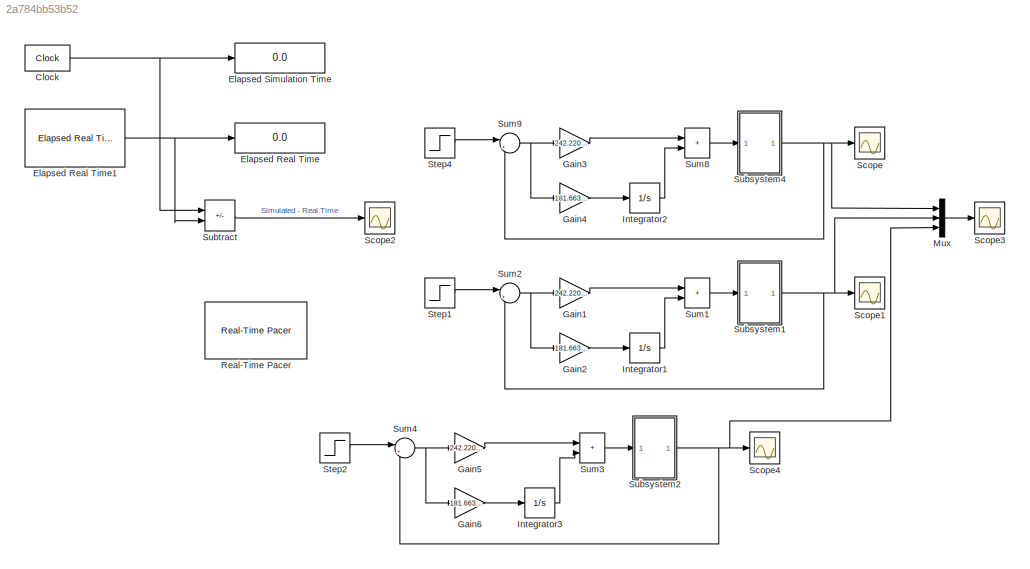
MODEL slx_2a784bb53b52
KIND model
CONFIG AbsTol = auto
CONFIG EnableMultiTasking = off
CONFIG FixedStep = auto
CONFIG MaxStep = auto
CONFIG MinStep = auto
CONFIG RelTol = 1e-3
CONFIG SampleTimeConstraint = Unconstrained
CONFIG SolverName = VariableStepAuto
CONFIG StartTime = 0.0
CONFIG StopTime = 2500
BLOCK [Clock] Clock
  Decimation = 1000
  DisplayTime = on
BLOCK [Display] Elapsed Real Time
  Decimation = 2
  Ports = [1]
BLOCK [Reference] Elapsed Real Time1  REF=realtime_pacer_lib/Elapsed Real Time
  Ports = [0, 1]
  SourceBlock = realtime_pacer_lib/Elapsed Real Time
  SourceType = RealTime_Elapsed
BLOCK [Display] Elapsed Simulation Time
  Decimation = 2
  Ports = [1]
BLOCK [Gain] Gain1
  Gain = 242.220445259
BLOCK [Gain] Gain2
  Gain = 181.6639660621
BLOCK [Gain] Gain3
  Gain = 242.220445259
BLOCK [Gain] Gain4
  Gain = 181.6639660621
BLOCK [Gain] Gain5
  Gain = 242.220445259
BLOCK [Gain] Gain6
  Gain = 181.6639660621
BLOCK [Integrator] Integrator1
  Ports = [1, 1]
BLOCK [Integrator] Integrator2
  Ports = [1, 1]
BLOCK [Integrator] Integrator3
  Ports = [1, 1]
BLOCK [Mux] Mux
  DisplayOption = bar
  Inputs = 3
  Ports = [3, 1]
BLOCK [Reference] Real-Time Pacer  REF=realtime_pacer_lib/Real-Time Pacer
  Ports = []
  SourceBlock = realtime_pacer_lib/Real-Time Pacer
  SourceType = RealTime_Pacer
BLOCK [Scope] Scope
  Floating = off
  NumInputPorts = 1
  Ports = [1]
  ScopeSpecificationString = Simulink.scopes.TimeScopeBlockCfg('CurrentConfiguration', extmgr.ConfigurationSet(extmgr.Configuration('Core','General UI',true),extmgr.Configuration('Core','Source UI',true),extmgr.Configuration('Sources','WiredSimulink',true,'DataLoggingVariableName','ScopeData1'),extmgr.Configuration('Visuals','Time Domain',true,'SerializedDisplays',{struct('MinYLimReal','414.64316','MaxYLimReal','418.20887','Y...<+1452ch>
BLOCK [Scope] Scope1
  Floating = off
  NumInputPorts = 1
  Ports = [1]
  ScopeSpecificationString = Simulink.scopes.TimeScopeBlockCfg('CurrentConfiguration', extmgr.ConfigurationSet(extmgr.Configuration('Core','General UI',true),extmgr.Configuration('Core','Source UI',true),extmgr.Configuration('Sources','WiredSimulink',true,'DataLoggingVariableName','ScopeData2'),extmgr.Configuration('Visuals','Time Domain',true,'SerializedDisplays',{struct('MinYLimReal','414.1428','MaxYLimReal','418.04752','YL...<+1423ch>
BLOCK [Scope] Scope2
  Floating = off
  NumInputPorts = 1
  Ports = [1]
  ScopeSpecificationString = Simulink.scopes.TimeScopeBlockCfg('CurrentConfiguration', extmgr.ConfigurationSet(extmgr.Configuration('Core','General UI',true),extmgr.Configuration('Core','Source UI',true),extmgr.Configuration('Sources','WiredSimulink',true,'DataLoggingSaveFormat','StructureWithTime','DataLoggingLimitDataPoints',true,'DataLoggingDecimation','1','DataLoggingDecimateData',true),extmgr.Configuration('Visuals','Tim...<+1651ch>
BLOCK [Scope] Scope3
  Floating = off
  NumInputPorts = 1
  Ports = [1]
  ScopeSpecificationString = Simulink.scopes.TimeScopeBlockCfg('CurrentConfiguration', extmgr.ConfigurationSet(extmgr.Configuration('Core','General UI',true),extmgr.Configuration('Core','Source UI',true),extmgr.Configuration('Sources','WiredSimulink',true,'DataLoggingVariableName','ScopeData3'),extmgr.Configuration('Visuals','Time Domain',true,'SerializedDisplays',{struct('MinYLimReal','417.81631','MaxYLimReal','418.05295','Y...<+1428ch>
BLOCK [Scope] Scope4
  Floating = off
  NumInputPorts = 1
  Ports = [1]
  ScopeSpecificationString = Simulink.scopes.TimeScopeBlockCfg('CurrentConfiguration', extmgr.ConfigurationSet(extmgr.Configuration('Core','General UI',true),extmgr.Configuration('Core','Source UI',true),extmgr.Configuration('Sources','WiredSimulink',true,'DataLoggingVariableName','ScopeData4'),extmgr.Configuration('Visuals','Time Domain',true,'SerializedDisplays',{struct('MinYLimReal','414.1428','MaxYLimReal','418.04752','YL...<+1423ch>
BLOCK [Step] Step1
  After = 418
  Before = 415
  SampleTime = 0
  Time = 0
BLOCK [Step] Step2
  After = 418
  Before = 415
  SampleTime = 0
  Time = 0
BLOCK [Step] Step4
  After = 418
  Before = 415
  SampleTime = 0
  Time = 0
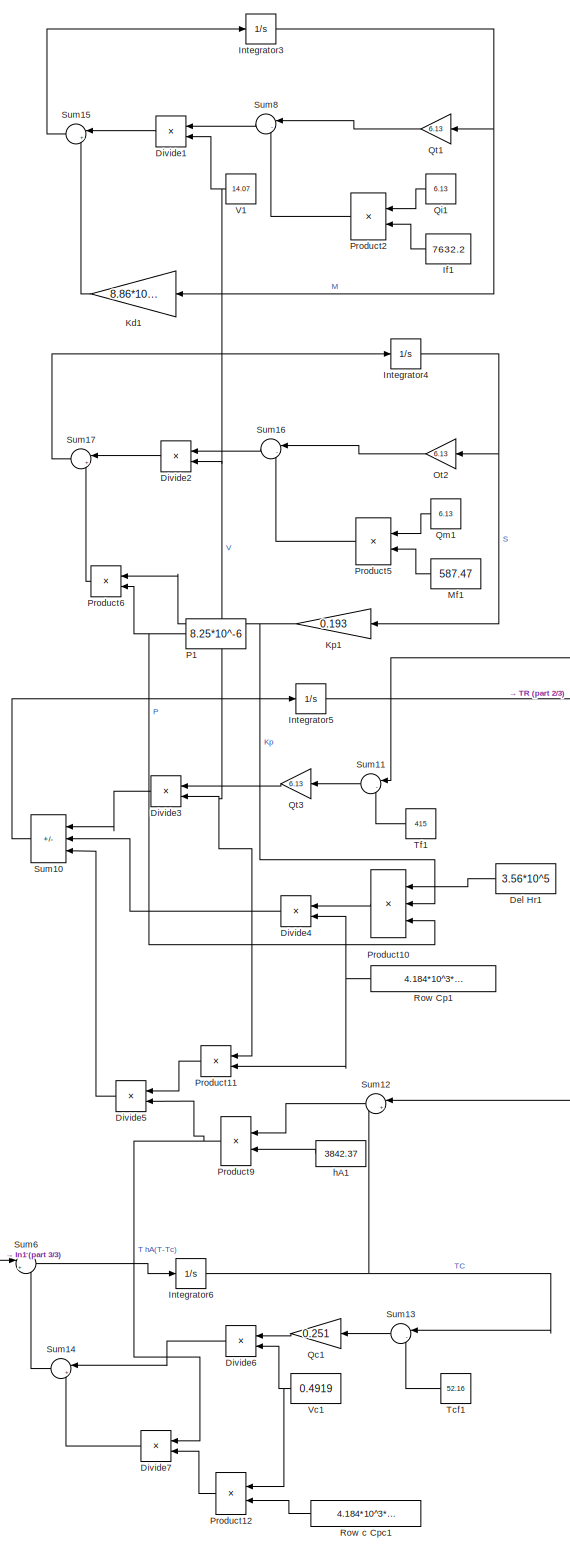
[diagram: Subsystem1 - part 1/3, center side, full height]
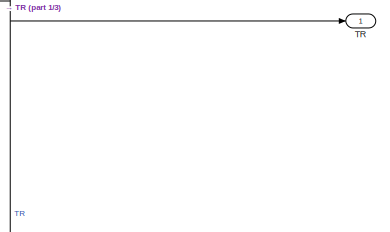
[diagram: Subsystem1 - part 2/3, middle right region]
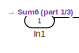
[diagram: Subsystem1 - part 3/3, bottom left region]
BLOCK [SubSystem] Subsystem1
  Ports = [1, 1]
  RequestExecContextInheritance = off
BLOCK [Constant] Subsystem1/Del Hr1
  NameLocation = top
  Value = 3.56*10^5
BLOCK [Product] Subsystem1/Divide1
  Inputs = */
  NameLocation = top
  Ports = [2, 1]
BLOCK [Product] Subsystem1/Divide2
  Inputs = */
  NameLocation = top
  Ports = [2, 1]
BLOCK [Product] Subsystem1/Divide3
  Inputs = */
  NameLocation = top
  Ports = [2, 1]
BLOCK [Product] Subsystem1/Divide4
  Inputs = */
  NameLocation = top
  Ports = [2, 1]
BLOCK [Product] Subsystem1/Divide5
  Inputs = /*
  NameLocation = top
  Ports = [2, 1]
BLOCK [Product] Subsystem1/Divide6
  Inputs = */
  NameLocation = top
  Ports = [2, 1]
BLOCK [Product] Subsystem1/Divide7
  Inputs = */
  NameLocation = top
  Ports = [2, 1]
BLOCK [Constant] Subsystem1/If1
  NameLocation = top
  Value = 7632.2
BLOCK [Inport] Subsystem1/In1
BLOCK [Integrator] Subsystem1/Integrator3
  InitialCondition = 7632.2
  Ports = [1, 1]
BLOCK [Integrator] Subsystem1/Integrator4
  InitialCondition = 587.47
  Ports = [1, 1]
BLOCK [Integrator] Subsystem1/Integrator5
  InitialCondition = 415
  Ports = [1, 1]
BLOCK [Integrator] Subsystem1/Integrator6
  InitialCondition = 326
  Ports = [1, 1]
BLOCK [Gain] Subsystem1/Kd1
  Gain = 8.86*10^-20
  NameLocation = top
BLOCK [Gain] Subsystem1/Kp1
  Gain = 0.193
  NameLocation = top
BLOCK [Constant] Subsystem1/Mf1
  NameLocation = top
  Value = 587.47
BLOCK [Gain] Subsystem1/Ot2
  Gain = 6.13
  NameLocation = top
BLOCK [Constant] Subsystem1/P1
  NameLocation = top
  Value = 8.25*10^-6
BLOCK [Product] Subsystem1/Product10
  Inputs = 3
  NameLocation = top
  Ports = [3, 1]
BLOCK [Product] Subsystem1/Product11
  NameLocation = top
  Ports = [2, 1]
BLOCK [Product] Subsystem1/Product12
  NameLocation = top
  Ports = [2, 1]
BLOCK [Product] Subsystem1/Product2
  NameLocation = top
  Ports = [2, 1]
BLOCK [Product] Subsystem1/Product5
  NameLocation = top
  Ports = [2, 1]
BLOCK [Product] Subsystem1/Product6
  NameLocation = top
  Ports = [2, 1]
BLOCK [Product] Subsystem1/Product9
  NameLocation = top
  Ports = [2, 1]
BLOCK [Gain] Subsystem1/Qc1
  Gain = 0.251
  NameLocation = top
BLOCK [Constant] Subsystem1/Qi1
  NameLocation = top
  Value = 6.13
BLOCK [Constant] Subsystem1/Qm1
  NameLocation = top
  Value = 6.13
BLOCK [Gain] Subsystem1/Qt1
  Gain = 6.13
  NameLocation = top
BLOCK [Gain] Subsystem1/Qt3
  Gain = 6.13
  NameLocation = top
BLOCK [Constant] Subsystem1/Row Cp1
  NameLocation = top
  Value = 4.184*10^3*858.085
BLOCK [Constant] Subsystem1/Row c Cpc1
  NameLocation = top
  Value = 4.184*10^3*858.085
BLOCK [Sum] Subsystem1/Sum10
  IconShape = rectangular
  Inputs = |++-
  NameLocation = top
  Ports = [3, 1]
BLOCK [Sum] Subsystem1/Sum11
  Inputs = |-+
  NameLocation = top
  Ports = [2, 1]
BLOCK [Sum] Subsystem1/Sum12
  Inputs = |+-
  NameLocation = top
  Ports = [2, 1]
BLOCK [Sum] Subsystem1/Sum13
  Inputs = |-+
  NameLocation = top
  Ports = [2, 1]
BLOCK [Sum] Subsystem1/Sum14
  Inputs = |++
  NameLocation = top
  Ports = [2, 1]
BLOCK [Sum] Subsystem1/Sum15
  Inputs = |+-
  NameLocation = top
  Ports = [2, 1]
BLOCK [Sum] Subsystem1/Sum16
  Inputs = |-+
  NameLocation = top
  Ports = [2, 1]
BLOCK [Sum] Subsystem1/Sum17
  Inputs = |+-
  NameLocation = top
  Ports = [2, 1]
BLOCK [Sum] Subsystem1/Sum6
  Inputs = |++
  Ports = [2, 1]
BLOCK [Sum] Subsystem1/Sum8
  Inputs = |-+
  NameLocation = top
  Ports = [2, 1]
BLOCK [Outport] Subsystem1/TR
BLOCK [Constant] Subsystem1/Tcf1
  NameLocation = top
  Value = 52.16
BLOCK [Constant] Subsystem1/Tf1
  NameLocation = top
  Value = 415
BLOCK [Constant] Subsystem1/V1
  NameLocation = top
  Value = 14.07
BLOCK [Constant] Subsystem1/Vc1
  NameLocation = top
  Value = 0.4919
BLOCK [Constant] Subsystem1/hA1
  NameLocation = top
  Value = 3842.37
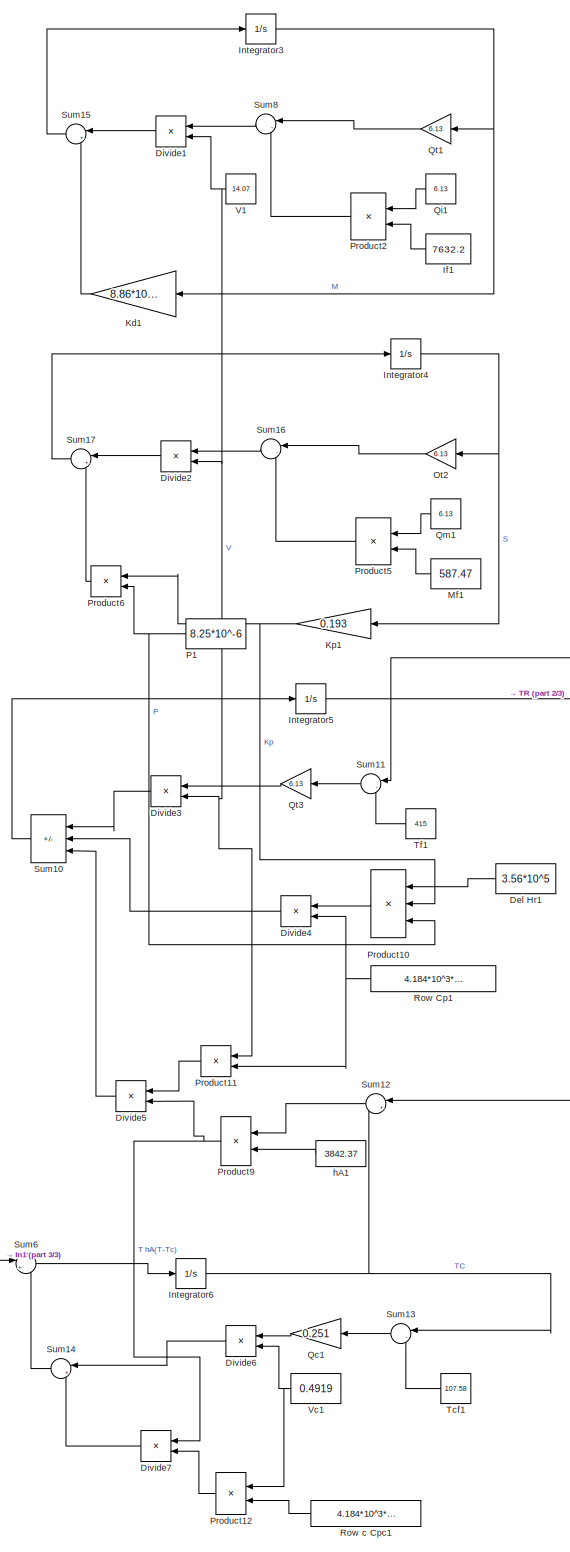
[diagram: Subsystem2 - part 1/3, center side, full height]
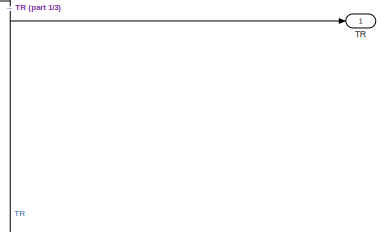
[diagram: Subsystem2 - part 2/3, middle right region]
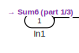
[diagram: Subsystem2 - part 3/3, bottom left region]
BLOCK [SubSystem] Subsystem2
  Ports = [1, 1]
  RequestExecContextInheritance = off
BLOCK [Constant] Subsystem2/Del Hr1
  NameLocation = top
  Value = 3.56*10^5
BLOCK [Product] Subsystem2/Divide1
  Inputs = */
  NameLocation = top
  Ports = [2, 1]
BLOCK [Product] Subsystem2/Divide2
  Inputs = */
  NameLocation = top
  Ports = [2, 1]
BLOCK [Product] Subsystem2/Divide3
  Inputs = */
  NameLocation = top
  Ports = [2, 1]
BLOCK [Product] Subsystem2/Divide4
  Inputs = */
  NameLocation = top
  Ports = [2, 1]
BLOCK [Product] Subsystem2/Divide5
  Inputs = /*
  NameLocation = top
  Ports = [2, 1]
BLOCK [Product] Subsystem2/Divide6
  Inputs = */
  NameLocation = top
  Ports = [2, 1]
BLOCK [Product] Subsystem2/Divide7
  Inputs = */
  NameLocation = top
  Ports = [2, 1]
BLOCK [Constant] Subsystem2/If1
  NameLocation = top
  Value = 7632.2
BLOCK [Inport] Subsystem2/In1
BLOCK [Integrator] Subsystem2/Integrator3
  InitialCondition = 7632.2
  Ports = [1, 1]
BLOCK [Integrator] Subsystem2/Integrator4
  InitialCondition = 587.47
  Ports = [1, 1]
BLOCK [Integrator] Subsystem2/Integrator5
  InitialCondition = 415
  Ports = [1, 1]
BLOCK [Integrator] Subsystem2/Integrator6
  InitialCondition = 326
  Ports = [1, 1]
BLOCK [Gain] Subsystem2/Kd1
  Gain = 8.86*10^-20
  NameLocation = top
BLOCK [Gain] Subsystem2/Kp1
  Gain = 0.193
  NameLocation = top
BLOCK [Constant] Subsystem2/Mf1
  NameLocation = top
  Value = 587.47
BLOCK [Gain] Subsystem2/Ot2
  Gain = 6.13
  NameLocation = top
BLOCK [Constant] Subsystem2/P1
  NameLocation = top
  Value = 8.25*10^-6
BLOCK [Product] Subsystem2/Product10
  Inputs = 3
  NameLocation = top
  Ports = [3, 1]
BLOCK [Product] Subsystem2/Product11
  NameLocation = top
  Ports = [2, 1]
BLOCK [Product] Subsystem2/Product12
  NameLocation = top
  Ports = [2, 1]
BLOCK [Product] Subsystem2/Product2
  NameLocation = top
  Ports = [2, 1]
BLOCK [Product] Subsystem2/Product5
  NameLocation = top
  Ports = [2, 1]
BLOCK [Product] Subsystem2/Product6
  NameLocation = top
  Ports = [2, 1]
BLOCK [Product] Subsystem2/Product9
  NameLocation = top
  Ports = [2, 1]
BLOCK [Gain] Subsystem2/Qc1
  Gain = 0.251
  NameLocation = top
BLOCK [Constant] Subsystem2/Qi1
  NameLocation = top
  Value = 6.13
BLOCK [Constant] Subsystem2/Qm1
  NameLocation = top
  Value = 6.13
BLOCK [Gain] Subsystem2/Qt1
  Gain = 6.13
  NameLocation = top
BLOCK [Gain] Subsystem2/Qt3
  Gain = 6.13
  NameLocation = top
BLOCK [Constant] Subsystem2/Row Cp1
  NameLocation = top
  Value = 4.184*10^3*858.085
BLOCK [Constant] Subsystem2/Row c Cpc1
  NameLocation = top
  Value = 4.184*10^3*858.085
BLOCK [Sum] Subsystem2/Sum10
  IconShape = rectangular
  Inputs = |++-
  NameLocation = top
  Ports = [3, 1]
BLOCK [Sum] Subsystem2/Sum11
  Inputs = |-+
  NameLocation = top
  Ports = [2, 1]
BLOCK [Sum] Subsystem2/Sum12
  Inputs = |+-
  NameLocation = top
  Ports = [2, 1]
BLOCK [Sum] Subsystem2/Sum13
  Inputs = |-+
  NameLocation = top
  Ports = [2, 1]
BLOCK [Sum] Subsystem2/Sum14
  Inputs = |++
  NameLocation = top
  Ports = [2, 1]
BLOCK [Sum] Subsystem2/Sum15
  Inputs = |+-
  NameLocation = top
  Ports = [2, 1]
BLOCK [Sum] Subsystem2/Sum16
  Inputs = |-+
  NameLocation = top
  Ports = [2, 1]
BLOCK [Sum] Subsystem2/Sum17
  Inputs = |+-
  NameLocation = top
  Ports = [2, 1]
BLOCK [Sum] Subsystem2/Sum6
  Inputs = |++
  Ports = [2, 1]
BLOCK [Sum] Subsystem2/Sum8
  Inputs = |-+
  NameLocation = top
  Ports = [2, 1]
BLOCK [Outport] Subsystem2/TR
BLOCK [Constant] Subsystem2/Tcf1
  NameLocation = top
  Value = 107.58
BLOCK [Constant] Subsystem2/Tf1
  NameLocation = top
  Value = 415
BLOCK [Constant] Subsystem2/V1
  NameLocation = top
  Value = 14.07
BLOCK [Constant] Subsystem2/Vc1
  NameLocation = top
  Value = 0.4919
BLOCK [Constant] Subsystem2/hA1
  NameLocation = top
  Value = 3842.37
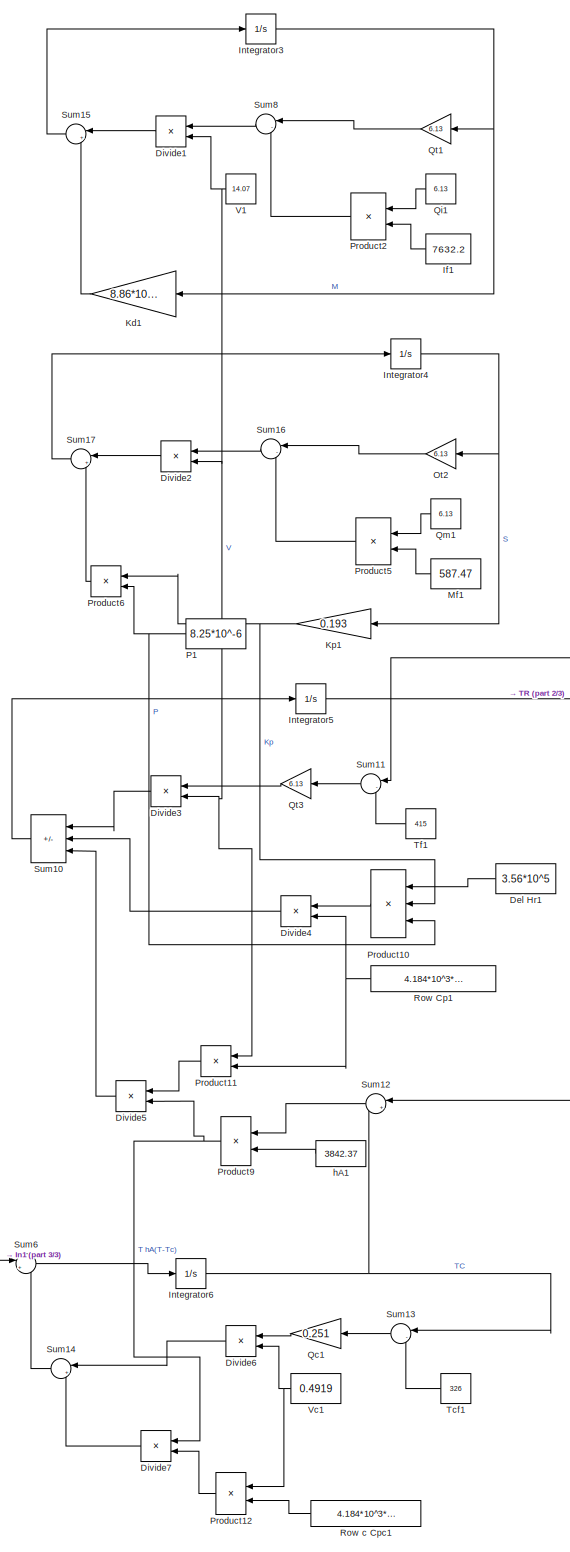
[diagram: Subsystem4 - part 1/3, center side, full height]
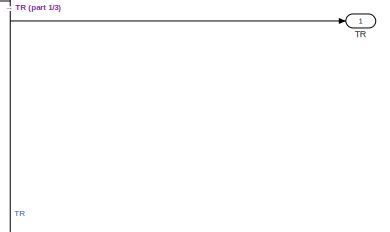
[diagram: Subsystem4 - part 2/3, middle right region]
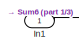
[diagram: Subsystem4 - part 3/3, bottom left region]
BLOCK [SubSystem] Subsystem4
  Ports = [1, 1]
  RequestExecContextInheritance = off
BLOCK [Constant] Subsystem4/Del Hr1
  NameLocation = top
  Value = 3.56*10^5
BLOCK [Product] Subsystem4/Divide1
  Inputs = */
  NameLocation = top
  Ports = [2, 1]
BLOCK [Product] Subsystem4/Divide2
  Inputs = */
  NameLocation = top
  Ports = [2, 1]
BLOCK [Product] Subsystem4/Divide3
  Inputs = */
  NameLocation = top
  Ports = [2, 1]
BLOCK [Product] Subsystem4/Divide4
  Inputs = */
  NameLocation = top
  Ports = [2, 1]
BLOCK [Product] Subsystem4/Divide5
  Inputs = /*
  NameLocation = top
  Ports = [2, 1]
BLOCK [Product] Subsystem4/Divide6
  Inputs = */
  NameLocation = top
  Ports = [2, 1]
BLOCK [Product] Subsystem4/Divide7
  Inputs = */
  NameLocation = top
  Ports = [2, 1]
BLOCK [Constant] Subsystem4/If1
  NameLocation = top
  Value = 7632.2
BLOCK [Inport] Subsystem4/In1
BLOCK [Integrator] Subsystem4/Integrator3
  InitialCondition = 7632.2
  Ports = [1, 1]
BLOCK [Integrator] Subsystem4/Integrator4
  InitialCondition = 587.47
  Ports = [1, 1]
BLOCK [Integrator] Subsystem4/Integrator5
  InitialCondition = 415
  Ports = [1, 1]
BLOCK [Integrator] Subsystem4/Integrator6
  InitialCondition = 326
  Ports = [1, 1]
BLOCK [Gain] Subsystem4/Kd1
  Gain = 8.86*10^-20
  NameLocation = top
BLOCK [Gain] Subsystem4/Kp1
  Gain = 0.193
  NameLocation = top
BLOCK [Constant] Subsystem4/Mf1
  NameLocation = top
  Value = 587.47
BLOCK [Gain] Subsystem4/Ot2
  Gain = 6.13
  NameLocation = top
BLOCK [Constant] Subsystem4/P1
  NameLocation = top
  Value = 8.25*10^-6
BLOCK [Product] Subsystem4/Product10
  Inputs = 3
  NameLocation = top
  Ports = [3, 1]
BLOCK [Product] Subsystem4/Product11
  NameLocation = top
  Ports = [2, 1]
BLOCK [Product] Subsystem4/Product12
  NameLocation = top
  Ports = [2, 1]
BLOCK [Product] Subsystem4/Product2
  NameLocation = top
  Ports = [2, 1]
BLOCK [Product] Subsystem4/Product5
  NameLocation = top
  Ports = [2, 1]
BLOCK [Product] Subsystem4/Product6
  NameLocation = top
  Ports = [2, 1]
BLOCK [Product] Subsystem4/Product9
  NameLocation = top
  Ports = [2, 1]
BLOCK [Gain] Subsystem4/Qc1
  Gain = 0.251
  NameLocation = top
BLOCK [Constant] Subsystem4/Qi1
  NameLocation = top
  Value = 6.13
BLOCK [Constant] Subsystem4/Qm1
  NameLocation = top
  Value = 6.13
BLOCK [Gain] Subsystem4/Qt1
  Gain = 6.13
  NameLocation = top
BLOCK [Gain] Subsystem4/Qt3
  Gain = 6.13
  NameLocation = top
BLOCK [Constant] Subsystem4/Row Cp1
  NameLocation = top
  Value = 4.184*10^3*858.085
BLOCK [Constant] Subsystem4/Row c Cpc1
  NameLocation = top
  Value = 4.184*10^3*858.085
BLOCK [Sum] Subsystem4/Sum10
  IconShape = rectangular
  Inputs = |++-
  NameLocation = top
  Ports = [3, 1]
BLOCK [Sum] Subsystem4/Sum11
  Inputs = |-+
  NameLocation = top
  Ports = [2, 1]
BLOCK [Sum] Subsystem4/Sum12
  Inputs = |+-
  NameLocation = top
  Ports = [2, 1]
BLOCK [Sum] Subsystem4/Sum13
  Inputs = |-+
  NameLocation = top
  Ports = [2, 1]
BLOCK [Sum] Subsystem4/Sum14
  Inputs = |++
  NameLocation = top
  Ports = [2, 1]
BLOCK [Sum] Subsystem4/Sum15
  Inputs = |+-
  NameLocation = top
  Ports = [2, 1]
BLOCK [Sum] Subsystem4/Sum16
  Inputs = |-+
  NameLocation = top
  Ports = [2, 1]
BLOCK [Sum] Subsystem4/Sum17
  Inputs = |+-
  NameLocation = top
  Ports = [2, 1]
BLOCK [Sum] Subsystem4/Sum6
  Inputs = |++
  Ports = [2, 1]
BLOCK [Sum] Subsystem4/Sum8
  Inputs = |-+
  NameLocation = top
  Ports = [2, 1]
BLOCK [Outport] Subsystem4/TR
BLOCK [Constant] Subsystem4/Tcf1
  NameLocation = top
  Value = 326
BLOCK [Constant] Subsystem4/Tf1
  NameLocation = top
  Value = 415
BLOCK [Constant] Subsystem4/V1
  NameLocation = top
  Value = 14.07
BLOCK [Constant] Subsystem4/Vc1
  NameLocation = top
  Value = 0.4919
BLOCK [Constant] Subsystem4/hA1
  NameLocation = top
  Value = 3842.37
BLOCK [Sum] Subtract
  IconShape = rectangular
  Inputs = +-
  Ports = [2, 1]
BLOCK [Sum] Sum1
  IconShape = rectangular
  Inputs = |++
  Ports = [2, 1]
BLOCK [Sum] Sum2
  Inputs = |+-
  Ports = [2, 1]
BLOCK [Sum] Sum3
  IconShape = rectangular
  Inputs = |++
  Ports = [2, 1]
BLOCK [Sum] Sum4
  Inputs = |+-
  Ports = [2, 1]
BLOCK [Sum] Sum8
  IconShape = rectangular
  Inputs = |++
  Ports = [2, 1]
BLOCK [Sum] Sum9
  Inputs = |+-
  Ports = [2, 1]
NET Clock:1 -> Elapsed Simulation Time:1, Subtract:1
NET Elapsed Real Time1:1 -> Elapsed Real Time:1, Subtract:2
LINE Gain1:1 -> Sum1:1
LINE Gain2:1 -> Integrator1:1
LINE Gain3:1 -> Sum8:1
LINE Gain4:1 -> Integrator2:1
LINE Gain5:1 -> Sum3:1
LINE Gain6:1 -> Integrator3:1
LINE Integrator1:1 -> Sum1:2
LINE Integrator2:1 -> Sum8:2
LINE Integrator3:1 -> Sum3:2
LINE Mux:1 -> Scope3:1
LINE Step1:1 -> Sum2:1
LINE Step2:1 -> Sum4:1
LINE Step4:1 -> Sum9:1
LINE Subsystem1/Del Hr1:1 -> Subsystem1/Product10:1
LINE Subsystem1/Divide1:1 -> Subsystem1/Sum15:1
LINE Subsystem1/Divide2:1 -> Subsystem1/Sum17:1
LINE Subsystem1/Divide3:1 -> Subsystem1/Sum10:1
LINE Subsystem1/Divide4:1 -> Subsystem1/Sum10:2
LINE Subsystem1/Divide5:1 -> Subsystem1/Sum10:3
LINE Subsystem1/Divide6:1 -> Subsystem1/Sum14:1
LINE Subsystem1/Divide7:1 -> Subsystem1/Sum14:2
LINE Subsystem1/If1:1 -> Subsystem1/Product2:2
LINE Subsystem1/In1:1 -> Subsystem1/Sum6:1
NET Subsystem1/Integrator3:1 -> Subsystem1/Kd1:1, Subsystem1/Qt1:1
NET Subsystem1/Integrator4:1 -> Subsystem1/Kp1:1, Subsystem1/Ot2:1
NET Subsystem1/Integrator5:1 -> Subsystem1/Sum11:1, Subsystem1/Sum12:1, Subsystem1/TR:1
NET Subsystem1/Integrator6:1 -> Subsystem1/Sum12:2, Subsystem1/Sum13:1
LINE Subsystem1/Kd1:1 -> Subsystem1/Sum15:2
NET Subsystem1/Kp1:1 -> Subsystem1/Product10:2, Subsystem1/Product6:1
LINE Subsystem1/Mf1:1 -> Subsystem1/Product5:2
LINE Subsystem1/Ot2:1 -> Subsystem1/Sum16:1
NET Subsystem1/P1:1 -> Subsystem1/Product10:3, Subsystem1/Product6:2
LINE Subsystem1/Product10:1 -> Subsystem1/Divide4:1
LINE Subsystem1/Product11:1 -> Subsystem1/Divide5:1
LINE Subsystem1/Product12:1 -> Subsystem1/Divide7:2
LINE Subsystem1/Product2:1 -> Subsystem1/Sum8:2
LINE Subsystem1/Product5:1 -> Subsystem1/Sum16:2
LINE Subsystem1/Product6:1 -> Subsystem1/Sum17:2
NET Subsystem1/Product9:1 -> Subsystem1/Divide5:2, Subsystem1/Divide7:1
LINE Subsystem1/Qc1:1 -> Subsystem1/Divide6:1
LINE Subsystem1/Qi1:1 -> Subsystem1/Product2:1
LINE Subsystem1/Qm1:1 -> Subsystem1/Product5:1
LINE Subsystem1/Qt1:1 -> Subsystem1/Sum8:1
LINE Subsystem1/Qt3:1 -> Subsystem1/Divide3:1
NET Subsystem1/Row Cp1:1 -> Subsystem1/Divide4:2, Subsystem1/Product11:2
LINE Subsystem1/Row c Cpc1:1 -> Subsystem1/Product12:2
LINE Subsystem1/Sum10:1 -> Subsystem1/Integrator5:1
LINE Subsystem1/Sum11:1 -> Subsystem1/Qt3:1
LINE Subsystem1/Sum12:1 -> Subsystem1/Product9:1
LINE Subsystem1/Sum13:1 -> Subsystem1/Qc1:1
LINE Subsystem1/Sum14:1 -> Subsystem1/Sum6:2
LINE Subsystem1/Sum15:1 -> Subsystem1/Integrator3:1
LINE Subsystem1/Sum16:1 -> Subsystem1/Divide2:1
LINE Subsystem1/Sum17:1 -> Subsystem1/Integrator4:1
LINE Subsystem1/Sum6:1 -> Subsystem1/Integrator6:1
LINE Subsystem1/Sum8:1 -> Subsystem1/Divide1:1
LINE Subsystem1/Tcf1:1 -> Subsystem1/Sum13:2
LINE Subsystem1/Tf1:1 -> Subsystem1/Sum11:2
NET Subsystem1/V1:1 -> Subsystem1/Divide1:2, Subsystem1/Divide2:2, Subsystem1/Divide3:2, Subsystem1/Product11:1
NET Subsystem1/Vc1:1 -> Subsystem1/Divide6:2, Subsystem1/Product12:1
LINE Subsystem1/hA1:1 -> Subsystem1/Product9:2
NET Subsystem1:1 -> Mux:2, Scope1:1, Sum2:2
LINE Subsystem2/Del Hr1:1 -> Subsystem2/Product10:1
LINE Subsystem2/Divide1:1 -> Subsystem2/Sum15:1
LINE Subsystem2/Divide2:1 -> Subsystem2/Sum17:1
LINE Subsystem2/Divide3:1 -> Subsystem2/Sum10:1
LINE Subsystem2/Divide4:1 -> Subsystem2/Sum10:2
LINE Subsystem2/Divide5:1 -> Subsystem2/Sum10:3
LINE Subsystem2/Divide6:1 -> Subsystem2/Sum14:1
LINE Subsystem2/Divide7:1 -> Subsystem2/Sum14:2
LINE Subsystem2/If1:1 -> Subsystem2/Product2:2
LINE Subsystem2/In1:1 -> Subsystem2/Sum6:1
NET Subsystem2/Integrator3:1 -> Subsystem2/Kd1:1, Subsystem2/Qt1:1
NET Subsystem2/Integrator4:1 -> Subsystem2/Kp1:1, Subsystem2/Ot2:1
NET Subsystem2/Integrator5:1 -> Subsystem2/Sum11:1, Subsystem2/Sum12:1, Subsystem2/TR:1
NET Subsystem2/Integrator6:1 -> Subsystem2/Sum12:2, Subsystem2/Sum13:1
LINE Subsystem2/Kd1:1 -> Subsystem2/Sum15:2
NET Subsystem2/Kp1:1 -> Subsystem2/Product10:2, Subsystem2/Product6:1
LINE Subsystem2/Mf1:1 -> Subsystem2/Product5:2
LINE Subsystem2/Ot2:1 -> Subsystem2/Sum16:1
NET Subsystem2/P1:1 -> Subsystem2/Product10:3, Subsystem2/Product6:2
LINE Subsystem2/Product10:1 -> Subsystem2/Divide4:1
LINE Subsystem2/Product11:1 -> Subsystem2/Divide5:1
LINE Subsystem2/Product12:1 -> Subsystem2/Divide7:2
LINE Subsystem2/Product2:1 -> Subsystem2/Sum8:2
LINE Subsystem2/Product5:1 -> Subsystem2/Sum16:2
LINE Subsystem2/Product6:1 -> Subsystem2/Sum17:2
NET Subsystem2/Product9:1 -> Subsystem2/Divide5:2, Subsystem2/Divide7:1
LINE Subsystem2/Qc1:1 -> Subsystem2/Divide6:1
LINE Subsystem2/Qi1:1 -> Subsystem2/Product2:1
LINE Subsystem2/Qm1:1 -> Subsystem2/Product5:1
LINE Subsystem2/Qt1:1 -> Subsystem2/Sum8:1
LINE Subsystem2/Qt3:1 -> Subsystem2/Divide3:1
NET Subsystem2/Row Cp1:1 -> Subsystem2/Divide4:2, Subsystem2/Product11:2
LINE Subsystem2/Row c Cpc1:1 -> Subsystem2/Product12:2
LINE Subsystem2/Sum10:1 -> Subsystem2/Integrator5:1
LINE Subsystem2/Sum11:1 -> Subsystem2/Qt3:1
LINE Subsystem2/Sum12:1 -> Subsystem2/Product9:1
LINE Subsystem2/Sum13:1 -> Subsystem2/Qc1:1
LINE Subsystem2/Sum14:1 -> Subsystem2/Sum6:2
LINE Subsystem2/Sum15:1 -> Subsystem2/Integrator3:1
LINE Subsystem2/Sum16:1 -> Subsystem2/Divide2:1
LINE Subsystem2/Sum17:1 -> Subsystem2/Integrator4:1
LINE Subsystem2/Sum6:1 -> Subsystem2/Integrator6:1
LINE Subsystem2/Sum8:1 -> Subsystem2/Divide1:1
LINE Subsystem2/Tcf1:1 -> Subsystem2/Sum13:2
LINE Subsystem2/Tf1:1 -> Subsystem2/Sum11:2
NET Subsystem2/V1:1 -> Subsystem2/Divide1:2, Subsystem2/Divide2:2, Subsystem2/Divide3:2, Subsystem2/Product11:1
NET Subsystem2/Vc1:1 -> Subsystem2/Divide6:2, Subsystem2/Product12:1
LINE Subsystem2/hA1:1 -> Subsystem2/Product9:2
NET Subsystem2:1 -> Mux:3, Scope4:1, Sum4:2
LINE Subsystem4/Del Hr1:1 -> Subsystem4/Product10:1
LINE Subsystem4/Divide1:1 -> Subsystem4/Sum15:1
LINE Subsystem4/Divide2:1 -> Subsystem4/Sum17:1
LINE Subsystem4/Divide3:1 -> Subsystem4/Sum10:1
LINE Subsystem4/Divide4:1 -> Subsystem4/Sum10:2
LINE Subsystem4/Divide5:1 -> Subsystem4/Sum10:3
LINE Subsystem4/Divide6:1 -> Subsystem4/Sum14:1
LINE Subsystem4/Divide7:1 -> Subsystem4/Sum14:2
LINE Subsystem4/If1:1 -> Subsystem4/Product2:2
LINE Subsystem4/In1:1 -> Subsystem4/Sum6:1
NET Subsystem4/Integrator3:1 -> Subsystem4/Kd1:1, Subsystem4/Qt1:1
NET Subsystem4/Integrator4:1 -> Subsystem4/Kp1:1, Subsystem4/Ot2:1
NET Subsystem4/Integrator5:1 -> Subsystem4/Sum11:1, Subsystem4/Sum12:1, Subsystem4/TR:1
NET Subsystem4/Integrator6:1 -> Subsystem4/Sum12:2, Subsystem4/Sum13:1
LINE Subsystem4/Kd1:1 -> Subsystem4/Sum15:2
NET Subsystem4/Kp1:1 -> Subsystem4/Product10:2, Subsystem4/Product6:1
LINE Subsystem4/Mf1:1 -> Subsystem4/Product5:2
LINE Subsystem4/Ot2:1 -> Subsystem4/Sum16:1
NET Subsystem4/P1:1 -> Subsystem4/Product10:3, Subsystem4/Product6:2
LINE Subsystem4/Product10:1 -> Subsystem4/Divide4:1
LINE Subsystem4/Product11:1 -> Subsystem4/Divide5:1
LINE Subsystem4/Product12:1 -> Subsystem4/Divide7:2
LINE Subsystem4/Product2:1 -> Subsystem4/Sum8:2
LINE Subsystem4/Product5:1 -> Subsystem4/Sum16:2
LINE Subsystem4/Product6:1 -> Subsystem4/Sum17:2
NET Subsystem4/Product9:1 -> Subsystem4/Divide5:2, Subsystem4/Divide7:1
LINE Subsystem4/Qc1:1 -> Subsystem4/Divide6:1
LINE Subsystem4/Qi1:1 -> Subsystem4/Product2:1
LINE Subsystem4/Qm1:1 -> Subsystem4/Product5:1
LINE Subsystem4/Qt1:1 -> Subsystem4/Sum8:1
LINE Subsystem4/Qt3:1 -> Subsystem4/Divide3:1
NET Subsystem4/Row Cp1:1 -> Subsystem4/Divide4:2, Subsystem4/Product11:2
LINE Subsystem4/Row c Cpc1:1 -> Subsystem4/Product12:2
LINE Subsystem4/Sum10:1 -> Subsystem4/Integrator5:1
LINE Subsystem4/Sum11:1 -> Subsystem4/Qt3:1
LINE Subsystem4/Sum12:1 -> Subsystem4/Product9:1
LINE Subsystem4/Sum13:1 -> Subsystem4/Qc1:1
LINE Subsystem4/Sum14:1 -> Subsystem4/Sum6:2
LINE Subsystem4/Sum15:1 -> Subsystem4/Integrator3:1
LINE Subsystem4/Sum16:1 -> Subsystem4/Divide2:1
LINE Subsystem4/Sum17:1 -> Subsystem4/Integrator4:1
LINE Subsystem4/Sum6:1 -> Subsystem4/Integrator6:1
LINE Subsystem4/Sum8:1 -> Subsystem4/Divide1:1
LINE Subsystem4/Tcf1:1 -> Subsystem4/Sum13:2
LINE Subsystem4/Tf1:1 -> Subsystem4/Sum11:2
NET Subsystem4/V1:1 -> Subsystem4/Divide1:2, Subsystem4/Divide2:2, Subsystem4/Divide3:2, Subsystem4/Product11:1
NET Subsystem4/Vc1:1 -> Subsystem4/Divide6:2, Subsystem4/Product12:1
LINE Subsystem4/hA1:1 -> Subsystem4/Product9:2
NET Subsystem4:1 -> Mux:1, Scope:1, Sum9:2
LINE Subtract:1 -> Scope2:1
LINE Sum1:1 -> Subsystem1:1
NET Sum2:1 -> Gain1:1, Gain2:1
LINE Sum3:1 -> Subsystem2:1
NET Sum4:1 -> Gain5:1, Gain6:1
LINE Sum8:1 -> Subsystem4:1
NET Sum9:1 -> Gain3:1, Gain4:1
note: NET lines group one-source signal fan-out (src -> all destinations, sorted); 1:1 wires keep LINE
